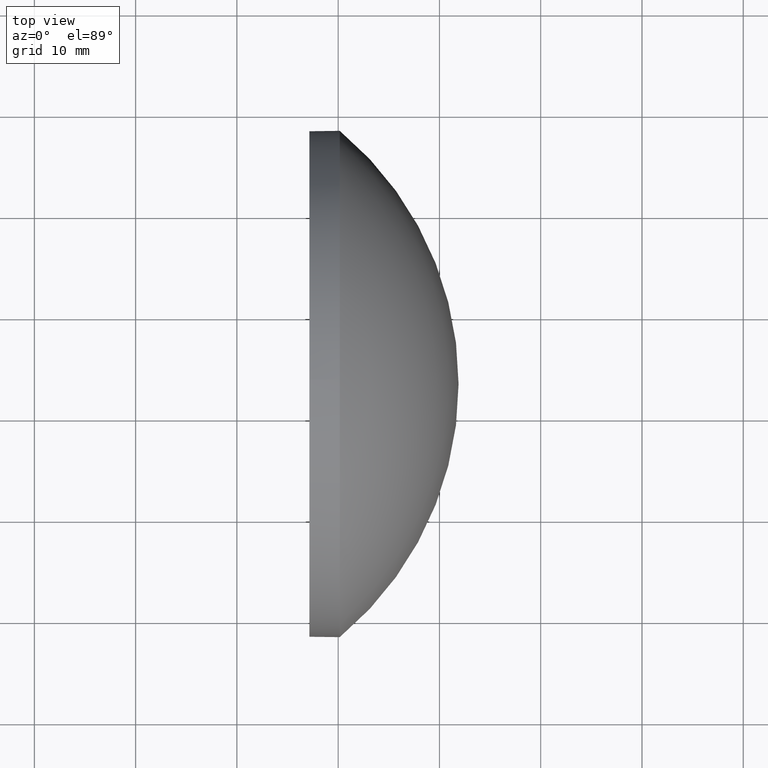
[diagram: clean part render]
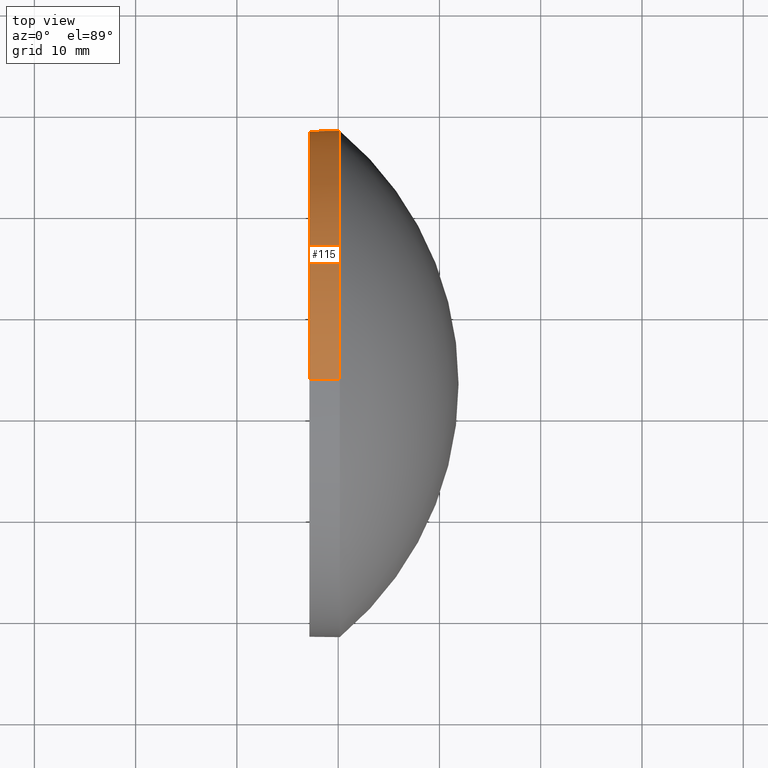
[diagram: same view with one face highlighted and labeled with its STEP entity id]
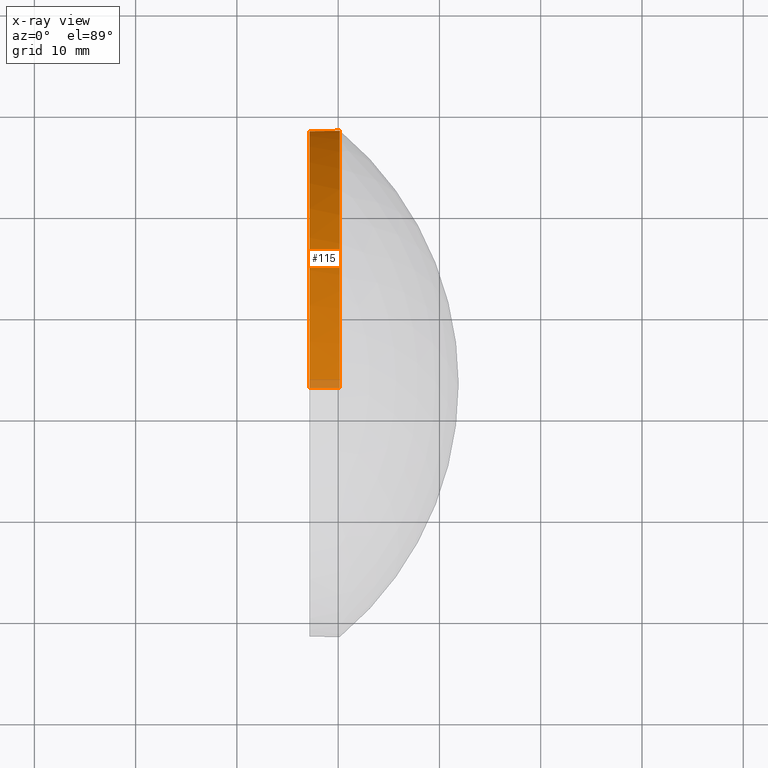
[diagram: x-ray of the same camera — body ghosted, the highlighted face saturated]
A machine part, top view. The second image highlights one B-rep face of the part: STEP entity #115.
The next image is the same camera in x-ray: the body ghosted, the highlighted face saturated — about 3% of this face is hidden behind the body in this view.
In plain terms, the highlighted cylindrical surface (partial cylindrical patch) has radius 25 mm, axis along (-1, -0, -0).
Its self-contained STEP definition (entity closure, byte-faithful):
#1 = AXIS2_PLACEMENT_3D ( 'NONE', #98, #40, #25 ) ;
#2 = ORIENTED_EDGE ( 'NONE', *, *, #155, .T. ) ;
#4 = ORIENTED_EDGE ( 'NONE', *, *, #161, .F. ) ;
#5 = DIRECTION ( 'NONE',  ( -1.000000000000000000, -0.0000000000000000000, -0.0000000000000000000 ) ) ;
#8 = VECTOR ( 'NONE', #85, 1000.000000000000000 ) ;
#9 = DIRECTION ( 'NONE',  ( -1.000000000000000000, -0.0000000000000000000, -0.0000000000000000000 ) ) ;
#12 = VERTEX_POINT ( 'NONE', #74 ) ;
#22 = CARTESIAN_POINT ( 'NONE',  ( 397.1609582187644500, 63.20629092500522000, 24.99999999999999300 ) ) ;
#23 = EDGE_CURVE ( 'NONE', #75, #55, #90, .T. ) ;
#25 = DIRECTION ( 'NONE',  ( 0.0000000000000000000, 0.0000000000000000000, 1.000000000000000000 ) ) ;
#29 = VERTEX_POINT ( 'NONE', #172 ) ;
#32 = DIRECTION ( 'NONE',  ( -1.000000000000000000, -0.0000000000000000000, -0.0000000000000000000 ) ) ;
#33 = EDGE_CURVE ( 'NONE', #135, #55, #120, .T. ) ;
#40 = DIRECTION ( 'NONE',  ( -1.000000000000000000, -0.0000000000000000000, -0.0000000000000000000 ) ) ;
#49 = CARTESIAN_POINT ( 'NONE',  ( 397.1609582187644500, 63.20629092500522000, 0.0000000000000000000 ) ) ;
#55 = VERTEX_POINT ( 'NONE', #104 ) ;
#60 = CIRCLE ( 'NONE', #1, 24.99999999999999300 ) ;
#62 = LINE ( 'NONE', #165, #8 ) ;
#68 = DIRECTION ( 'NONE',  ( 0.0000000000000000000, 0.0000000000000000000, 1.000000000000000000 ) ) ;
#74 = CARTESIAN_POINT ( 'NONE',  ( 400.1609582187644500, 88.20629092500520600, 0.0000000000000000000 ) ) ;
#75 = VERTEX_POINT ( 'NONE', #22 ) ;
#79 = CARTESIAN_POINT ( 'NONE',  ( 400.1609582187644500, 63.20629092500522000, 0.0000000000000000000 ) ) ;
#81 = ORIENTED_EDGE ( 'NONE', *, *, #33, .T. ) ;
#85 = DIRECTION ( 'NONE',  ( -1.000000000000000000, -0.0000000000000000000, -0.0000000000000000000 ) ) ;
#86 = VECTOR ( 'NONE', #149, 1000.000000000000000 ) ;
#90 = CIRCLE ( 'NONE', #100, 24.99999999999999300 ) ;
#95 = EDGE_CURVE ( 'NONE', #29, #12, #157, .T. ) ;
#98 = CARTESIAN_POINT ( 'NONE',  ( 400.1609582187644500, 63.20629092500522000, 0.0000000000000000000 ) ) ;
#100 = AXIS2_PLACEMENT_3D ( 'NONE', #49, #5, #136 ) ;
#104 = CARTESIAN_POINT ( 'NONE',  ( 397.1609582187644500, 63.20629092500522000, -24.99999999999999300 ) ) ;
#105 = DIRECTION ( 'NONE',  ( 0.0000000000000000000, 0.0000000000000000000, 1.000000000000000000 ) ) ;
#108 = CYLINDRICAL_SURFACE ( 'NONE', #158, 24.99999999999999300 ) ;
#112 = ORIENTED_EDGE ( 'NONE', *, *, #23, .F. ) ;
#115 = ADVANCED_FACE ( 'NONE', ( #130 ), #108, .T. ) ;
#120 = LINE ( 'NONE', #177, #86 ) ;
#127 = CARTESIAN_POINT ( 'NONE',  ( 400.1609582187644500, 63.20629092500522000, -24.99999999999999300 ) ) ;
#130 = FACE_OUTER_BOUND ( 'NONE', #185, .T. ) ;
#135 = VERTEX_POINT ( 'NONE', #127 ) ;
#136 = DIRECTION ( 'NONE',  ( 0.0000000000000000000, 0.0000000000000000000, 1.000000000000000000 ) ) ;
#140 = ORIENTED_EDGE ( 'NONE', *, *, #95, .T. ) ;
#143 = AXIS2_PLACEMENT_3D ( 'NONE', #79, #32, #105 ) ;
#149 = DIRECTION ( 'NONE',  ( -1.000000000000000000, -0.0000000000000000000, -0.0000000000000000000 ) ) ;
#155 = EDGE_CURVE ( 'NONE', #12, #135, #60, .T. ) ;
#157 = CIRCLE ( 'NONE', #143, 24.99999999999999300 ) ;
#158 = AXIS2_PLACEMENT_3D ( 'NONE', #182, #9, #68 ) ;
#161 = EDGE_CURVE ( 'NONE', #29, #75, #62, .T. ) ;
#165 = CARTESIAN_POINT ( 'NONE',  ( 393.1891829296483800, 63.20629092500522000, 24.99999999999999300 ) ) ;
#172 = CARTESIAN_POINT ( 'NONE',  ( 400.1609582187644500, 63.20629092500522000, 24.99999999999999300 ) ) ;
#177 = CARTESIAN_POINT ( 'NONE',  ( 393.1891829296483800, 63.20629092500522000, -24.99999999999999300 ) ) ;
#182 = CARTESIAN_POINT ( 'NONE',  ( 393.1891829296483800, 63.20629092500522000, 0.0000000000000000000 ) ) ;
#185 = EDGE_LOOP ( 'NONE', ( #2, #81, #112, #4, #140 ) ) ;